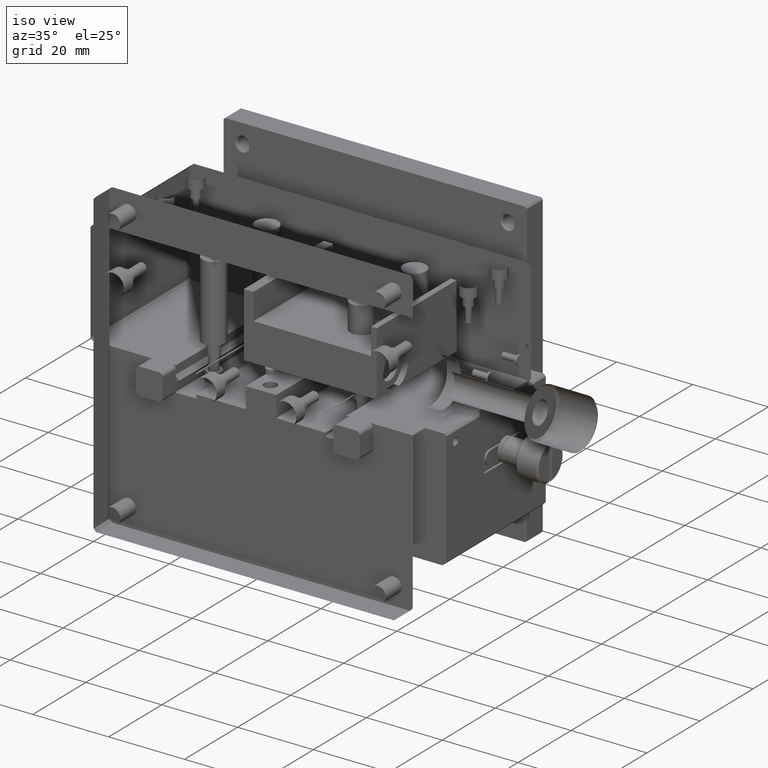
[diagram: clean part render]
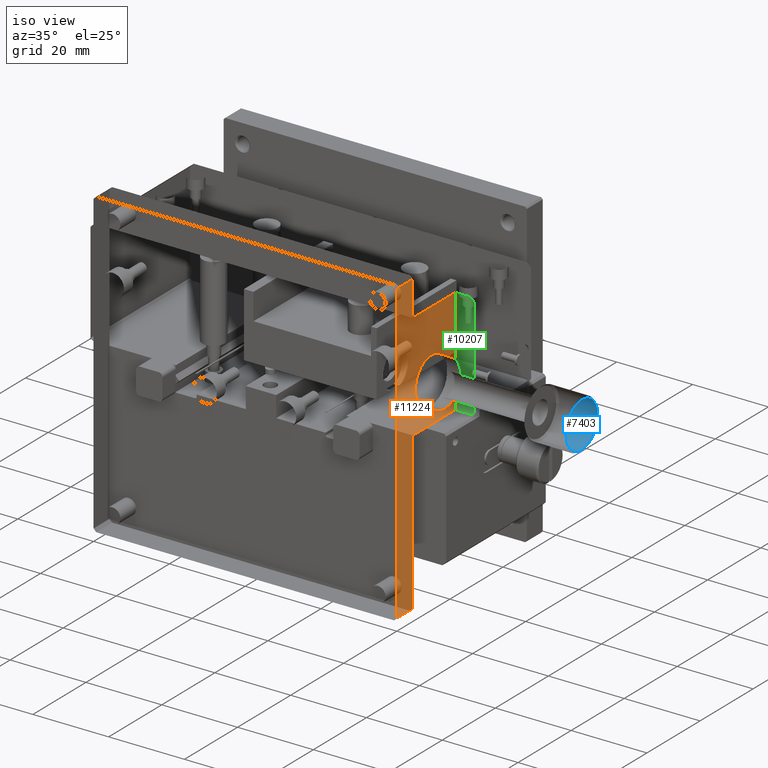
[diagram: same view with three faces highlighted in distinct colors, each labeled with its STEP entity id]
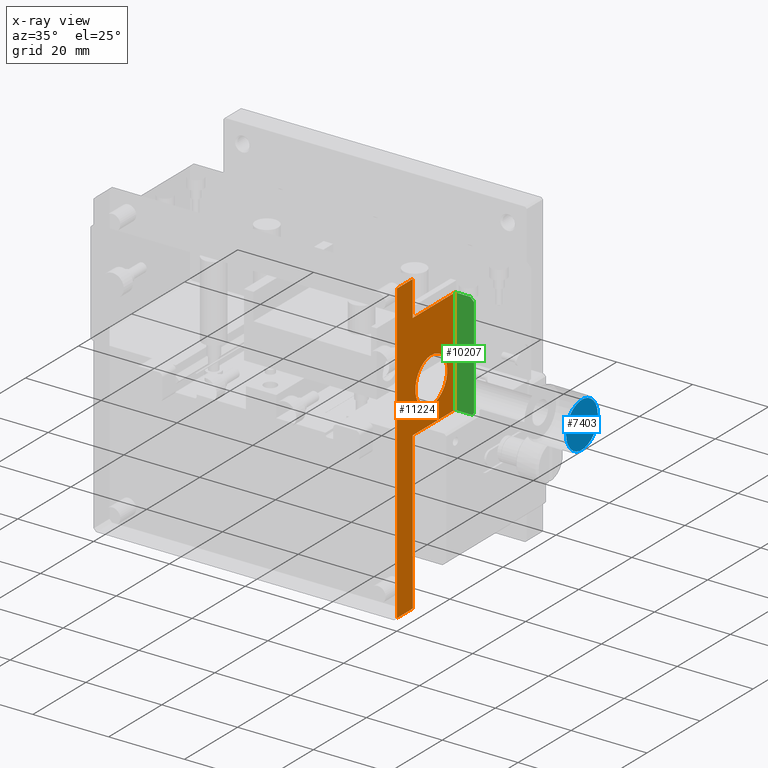
[diagram: x-ray of the same camera — body ghosted, the three highlighted faces saturated]
A machine part, iso view with three faces highlighted in distinct colors.
The next image is the same camera in x-ray (body ghosted, the three faces saturated) — at least one of them is partly hidden behind the body in this view.
Their STEP definitions:

[orange] entity #11224 — the highlighted planar face has unit normal (-1, 0, 0).
#67 = VERTEX_POINT ( 'NONE', #8366 ) ;
#158 = EDGE_CURVE ( 'NONE', #1120, #8462, #11122, .T. ) ;
#383 = LINE ( 'NONE', #8684, #1102 ) ;
#456 = ORIENTED_EDGE ( 'NONE', *, *, #10582, .T. ) ;
#521 = ORIENTED_EDGE ( 'NONE', *, *, #5412, .T. ) ;
#593 = DIRECTION ( 'NONE',  ( -0.000000000000000000, -0.000000000000000000, -1.000000000000000000 ) ) ;
#749 = LINE ( 'NONE', #3602, #7406 ) ;
#880 = CARTESIAN_POINT ( 'NONE',  ( 80.00000000000000000, 22.00000000000000000, -0.7099999999999999645 ) ) ;
#934 = DIRECTION ( 'NONE',  ( -0.000000000000000000, -0.000000000000000000, -1.000000000000000000 ) ) ;
#1069 = DIRECTION ( 'NONE',  ( 0.000000000000000000, 0.000000000000000000, -1.000000000000000000 ) ) ;
#1102 = VECTOR ( 'NONE', #10637, 1000.000000000000000 ) ;
#1120 = VERTEX_POINT ( 'NONE', #6941 ) ;
#1172 = VERTEX_POINT ( 'NONE', #8310 ) ;
#1306 = ORIENTED_EDGE ( 'NONE', *, *, #3867, .T. ) ;
#1828 = VECTOR ( 'NONE', #11259, 1000.000000000000000 ) ;
#1927 = AXIS2_PLACEMENT_3D ( 'NONE', #8747, #8081, #4336 ) ;
#2046 = CARTESIAN_POINT ( 'NONE',  ( 80.00000000000000000, 0.000000000000000000, -0.7099999999999998535 ) ) ;
#2287 = DIRECTION ( 'NONE',  ( -0.000000000000000000, -1.000000000000000000, 0.000000000000000000 ) ) ;
#2359 = EDGE_CURVE ( 'NONE', #1172, #9646, #4765, .T. ) ;
#2538 = VECTOR ( 'NONE', #9402, 1000.000000000000000 ) ;
#2718 = CARTESIAN_POINT ( 'NONE',  ( 80.00000000000000000, 6.000000000000000000, -38.00000000000000000 ) ) ;
#2753 = CARTESIAN_POINT ( 'NONE',  ( 80.00000000000001421, -1.951563910473907981E-15, -79.29000000000000625 ) ) ;
#2994 = EDGE_LOOP ( 'NONE', ( #9284, #5739, #3253, #1306, #3420, #9675, #10576, #521 ) ) ;
#3253 = ORIENTED_EDGE ( 'NONE', *, *, #7061, .T. ) ;
#3317 = LINE ( 'NONE', #9935, #9655 ) ;
#3420 = ORIENTED_EDGE ( 'NONE', *, *, #2359, .T. ) ;
#3602 = CARTESIAN_POINT ( 'NONE',  ( 80.00000000000000000, 6.000000000000000000, -0.7099999999999999645 ) ) ;
#3867 = EDGE_CURVE ( 'NONE', #10623, #1172, #383, .T. ) ;
#3970 = FACE_BOUND ( 'NONE', #10287, .T. ) ;
#4336 = DIRECTION ( 'NONE',  ( 0.000000000000000000, 0.000000000000000000, 1.000000000000000000 ) ) ;
#4423 = CARTESIAN_POINT ( 'NONE',  ( 80.00000000000000000, 13.00000000000000178, -27.50000000000000000 ) ) ;
#4452 = DIRECTION ( 'NONE',  ( 0.000000000000000000, 1.000000000000000000, -0.000000000000000000 ) ) ;
#4676 = EDGE_CURVE ( 'NONE', #11994, #8462, #6682, .T. ) ;
#4765 = LINE ( 'NONE', #8450, #1828 ) ;
#5384 = CARTESIAN_POINT ( 'NONE',  ( 80.00000000000000000, 22.00000000000000000, -9.999999999999994671 ) ) ;
#5412 = EDGE_CURVE ( 'NONE', #7667, #1120, #3317, .T. ) ;
#5716 = CARTESIAN_POINT ( 'NONE',  ( 80.00000000000000000, 0.000000000000000000, 0.000000000000000000 ) ) ;
#5739 = ORIENTED_EDGE ( 'NONE', *, *, #4676, .F. ) ;
#6015 = EDGE_CURVE ( 'NONE', #9646, #6046, #9180, .T. ) ;
#6046 = VERTEX_POINT ( 'NONE', #10270 ) ;
#6105 = VECTOR ( 'NONE', #2287, 1000.000000000000000 ) ;
#6510 = CARTESIAN_POINT ( 'NONE',  ( 80.00000000000000000, 6.000000000000000000, -79.29000000000000625 ) ) ;
#6562 = VECTOR ( 'NONE', #8358, 1000.000000000000000 ) ;
#6682 = LINE ( 'NONE', #5716, #6562 ) ;
#6941 = CARTESIAN_POINT ( 'NONE',  ( 80.00000000000001421, 6.000000000000000000, -79.29000000000000625 ) ) ;
#7061 = EDGE_CURVE ( 'NONE', #11994, #10623, #749, .T. ) ;
#7406 = VECTOR ( 'NONE', #4452, 1000.000000000000000 ) ;
#7646 = AXIS2_PLACEMENT_3D ( 'NONE', #4423, #9260, #1069 ) ;
#7667 = VERTEX_POINT ( 'NONE', #2718 ) ;
#7671 = PLANE ( 'NONE',  #1927 ) ;
#7823 = LINE ( 'NONE', #8789, #6105 ) ;
#8081 = DIRECTION ( 'NONE',  ( -1.000000000000000000, 0.000000000000000000, 0.000000000000000000 ) ) ;
#8310 = CARTESIAN_POINT ( 'NONE',  ( 80.00000000000000000, 6.000000000000000000, -9.999999999999991118 ) ) ;
#8358 = DIRECTION ( 'NONE',  ( -0.000000000000000000, 0.000000000000000000, -1.000000000000000000 ) ) ;
#8366 = CARTESIAN_POINT ( 'NONE',  ( 80.00000000000000000, 13.00000000000000178, -33.50000000000000000 ) ) ;
#8450 = CARTESIAN_POINT ( 'NONE',  ( 80.00000000000000000, 6.000000000000000000, -9.999999999999989342 ) ) ;
#8462 = VERTEX_POINT ( 'NONE', #2753 ) ;
#8569 = FACE_OUTER_BOUND ( 'NONE', #2994, .T. ) ;
#8684 = CARTESIAN_POINT ( 'NONE',  ( 80.00000000000000000, 6.000000000000000000, -0.7099999999999999645 ) ) ;
#8747 = CARTESIAN_POINT ( 'NONE',  ( 80.00000000000000000, 6.000000000000000000, -0.7099999999999999645 ) ) ;
#8789 = CARTESIAN_POINT ( 'NONE',  ( 80.00000000000000000, 6.000000000000000000, -38.00000000000000000 ) ) ;
#9036 = EDGE_CURVE ( 'NONE', #6046, #7667, #7823, .T. ) ;
#9180 = LINE ( 'NONE', #880, #11827 ) ;
#9260 = DIRECTION ( 'NONE',  ( 1.000000000000000000, 0.000000000000000000, 0.000000000000000000 ) ) ;
#9284 = ORIENTED_EDGE ( 'NONE', *, *, #158, .T. ) ;
#9402 = DIRECTION ( 'NONE',  ( -0.000000000000000000, -1.000000000000000000, 0.000000000000000000 ) ) ;
#9646 = VERTEX_POINT ( 'NONE', #5384 ) ;
#9655 = VECTOR ( 'NONE', #593, 1000.000000000000000 ) ;
#9675 = ORIENTED_EDGE ( 'NONE', *, *, #6015, .T. ) ;
#9935 = CARTESIAN_POINT ( 'NONE',  ( 80.00000000000000000, 6.000000000000000000, -0.7099999999999999645 ) ) ;
#10270 = CARTESIAN_POINT ( 'NONE',  ( 80.00000000000000000, 22.00000000000000000, -38.00000000000000000 ) ) ;
#10287 = EDGE_LOOP ( 'NONE', ( #456 ) ) ;
#10576 = ORIENTED_EDGE ( 'NONE', *, *, #9036, .T. ) ;
#10582 = EDGE_CURVE ( 'NONE', #67, #67, #11919, .T. ) ;
#10623 = VERTEX_POINT ( 'NONE', #11222 ) ;
#10637 = DIRECTION ( 'NONE',  ( -0.000000000000000000, -0.000000000000000000, -1.000000000000000000 ) ) ;
#11122 = LINE ( 'NONE', #6510, #2538 ) ;
#11222 = CARTESIAN_POINT ( 'NONE',  ( 80.00000000000000000, 6.000000000000000000, -0.7099999999999998535 ) ) ;
#11224 = ADVANCED_FACE ( 'NONE', ( #8569, #3970 ), #7671, .T. ) ;
#11259 = DIRECTION ( 'NONE',  ( 0.000000000000000000, 1.000000000000000000, -0.000000000000000000 ) ) ;
#11827 = VECTOR ( 'NONE', #934, 1000.000000000000000 ) ;
#11919 = CIRCLE ( 'NONE', #7646, 6.000000000000001776 ) ;
#11994 = VERTEX_POINT ( 'NONE', #2046 ) ;

[blue] entity #7403 — the highlighted planar face has unit normal (-1, 0, 0).
#3182 = EDGE_CURVE ( 'NONE', #9485, #9485, #5306, .T. ) ;
#3929 = AXIS2_PLACEMENT_3D ( 'NONE', #8587, #7390, #5760 ) ;
#4027 = CARTESIAN_POINT ( 'NONE',  ( 119.7499999999536158, 7.000000000003184120, -27.50000000000000000 ) ) ;
#4258 = FACE_OUTER_BOUND ( 'NONE', #9194, .T. ) ;
#5306 = CIRCLE ( 'NONE', #3929, 5.999999999996816769 ) ;
#5760 = DIRECTION ( 'NONE',  ( 0.000000000000000000, -1.000000000000000000, 0.000000000000000000 ) ) ;
#5853 = ORIENTED_EDGE ( 'NONE', *, *, #3182, .T. ) ;
#6636 = AXIS2_PLACEMENT_3D ( 'NONE', #7952, #7063, #7121 ) ;
#7063 = DIRECTION ( 'NONE',  ( -1.000000000000000000, 0.000000000000000000, 0.000000000000000000 ) ) ;
#7121 = DIRECTION ( 'NONE',  ( 0.000000000000000000, 0.000000000000000000, 1.000000000000000000 ) ) ;
#7390 = DIRECTION ( 'NONE',  ( -1.000000000000000000, -1.067522139065115664E-15, -0.000000000000000000 ) ) ;
#7403 = ADVANCED_FACE ( 'NONE', ( #4258 ), #9093, .T. ) ;
#7952 = CARTESIAN_POINT ( 'NONE',  ( 119.7500000000000142, 19.00000000000000000, -27.50000000000000000 ) ) ;
#8587 = CARTESIAN_POINT ( 'NONE',  ( 119.7499999999536158, 13.00000000000000178, -27.50000000000000000 ) ) ;
#9093 = PLANE ( 'NONE',  #6636 ) ;
#9194 = EDGE_LOOP ( 'NONE', ( #5853 ) ) ;
#9485 = VERTEX_POINT ( 'NONE', #4027 ) ;

[green] entity #10207 — the highlighted planar face has unit normal (0, 1, 0).
#43 = EDGE_CURVE ( 'NONE', #6855, #6356, #794, .T. ) ;
#206 = LINE ( 'NONE', #1226, #2177 ) ;
#794 = LINE ( 'NONE', #4325, #9317 ) ;
#880 = CARTESIAN_POINT ( 'NONE',  ( 80.00000000000000000, 22.00000000000000000, -0.7099999999999999645 ) ) ;
#934 = DIRECTION ( 'NONE',  ( -0.000000000000000000, -0.000000000000000000, -1.000000000000000000 ) ) ;
#1226 = CARTESIAN_POINT ( 'NONE',  ( 85.00000000000000000, 22.00000000000000000, -9.999999999999994671 ) ) ;
#1703 = FACE_OUTER_BOUND ( 'NONE', #2270, .T. ) ;
#1720 = LINE ( 'NONE', #6532, #6665 ) ;
#2177 = VECTOR ( 'NONE', #2247, 1000.000000000000000 ) ;
#2247 = DIRECTION ( 'NONE',  ( 1.000000000000000000, 0.000000000000000000, -0.000000000000000000 ) ) ;
#2270 = EDGE_LOOP ( 'NONE', ( #11634, #4600, #10729, #10727, #11094, #6113 ) ) ;
#2586 = AXIS2_PLACEMENT_3D ( 'NONE', #5487, #10205, #7644 ) ;
#2682 = VERTEX_POINT ( 'NONE', #3025 ) ;
#2942 = EDGE_CURVE ( 'NONE', #2682, #6855, #5282, .T. ) ;
#3025 = CARTESIAN_POINT ( 'NONE',  ( 85.00000000000000000, 22.00000000000000355, -10.99999999999999822 ) ) ;
#3502 = EDGE_CURVE ( 'NONE', #2682, #8640, #4527, .T. ) ;
#3615 = DIRECTION ( 'NONE',  ( -0.7071067811865480168, 0.000000000000000000, 0.7071067811865470176 ) ) ;
#4325 = CARTESIAN_POINT ( 'NONE',  ( 85.00000000000000000, 22.00000000000000000, -37.50000000000000000 ) ) ;
#4527 = LINE ( 'NONE', #11943, #11313 ) ;
#4600 = ORIENTED_EDGE ( 'NONE', *, *, #6015, .F. ) ;
#5058 = CARTESIAN_POINT ( 'NONE',  ( 84.50000000000000000, 22.00000000000000000, -38.00000000000000000 ) ) ;
#5282 = LINE ( 'NONE', #5348, #11878 ) ;
#5348 = CARTESIAN_POINT ( 'NONE',  ( 85.00000000000000000, 22.00000000000000000, -80.00000000000000000 ) ) ;
#5384 = CARTESIAN_POINT ( 'NONE',  ( 80.00000000000000000, 22.00000000000000000, -9.999999999999994671 ) ) ;
#5487 = CARTESIAN_POINT ( 'NONE',  ( 85.00000000000000000, 22.00000000000000000, -80.00000000000000000 ) ) ;
#6015 = EDGE_CURVE ( 'NONE', #9646, #6046, #9180, .T. ) ;
#6046 = VERTEX_POINT ( 'NONE', #10270 ) ;
#6113 = ORIENTED_EDGE ( 'NONE', *, *, #43, .T. ) ;
#6356 = VERTEX_POINT ( 'NONE', #5058 ) ;
#6532 = CARTESIAN_POINT ( 'NONE',  ( 84.50000000000000000, 22.00000000000000000, -38.00000000000000000 ) ) ;
#6665 = VECTOR ( 'NONE', #9363, 1000.000000000000000 ) ;
#6855 = VERTEX_POINT ( 'NONE', #7009 ) ;
#7009 = CARTESIAN_POINT ( 'NONE',  ( 85.00000000000000000, 21.99999999999999645, -37.49999999999999289 ) ) ;
#7209 = DIRECTION ( 'NONE',  ( -0.000000000000000000, 0.000000000000000000, -1.000000000000000000 ) ) ;
#7644 = DIRECTION ( 'NONE',  ( 0.000000000000000000, -0.000000000000000000, 1.000000000000000000 ) ) ;
#8640 = VERTEX_POINT ( 'NONE', #11213 ) ;
#9167 = PLANE ( 'NONE',  #2586 ) ;
#9180 = LINE ( 'NONE', #880, #11827 ) ;
#9317 = VECTOR ( 'NONE', #10996, 1000.000000000000114 ) ;
#9363 = DIRECTION ( 'NONE',  ( 1.000000000000000000, 0.000000000000000000, -0.000000000000000000 ) ) ;
#9646 = VERTEX_POINT ( 'NONE', #5384 ) ;
#9794 = EDGE_CURVE ( 'NONE', #6046, #6356, #1720, .T. ) ;
#9915 = EDGE_CURVE ( 'NONE', #9646, #8640, #206, .T. ) ;
#10205 = DIRECTION ( 'NONE',  ( 0.000000000000000000, 1.000000000000000000, 0.000000000000000000 ) ) ;
#10207 = ADVANCED_FACE ( 'NONE', ( #1703 ), #9167, .T. ) ;
#10270 = CARTESIAN_POINT ( 'NONE',  ( 80.00000000000000000, 22.00000000000000000, -38.00000000000000000 ) ) ;
#10727 = ORIENTED_EDGE ( 'NONE', *, *, #3502, .F. ) ;
#10729 = ORIENTED_EDGE ( 'NONE', *, *, #9915, .T. ) ;
#10996 = DIRECTION ( 'NONE',  ( -0.7071067811865474617, 0.000000000000000000, -0.7071067811865474617 ) ) ;
#11094 = ORIENTED_EDGE ( 'NONE', *, *, #2942, .T. ) ;
#11213 = CARTESIAN_POINT ( 'NONE',  ( 84.00000000000000000, 22.00000000000000000, -10.00000000000000000 ) ) ;
#11313 = VECTOR ( 'NONE', #3615, 1000.000000000000000 ) ;
#11634 = ORIENTED_EDGE ( 'NONE', *, *, #9794, .F. ) ;
#11827 = VECTOR ( 'NONE', #934, 1000.000000000000000 ) ;
#11878 = VECTOR ( 'NONE', #7209, 1000.000000000000000 ) ;
#11943 = CARTESIAN_POINT ( 'NONE',  ( 84.00000000000000000, 22.00000000000000000, -10.00000000000000000 ) ) ;